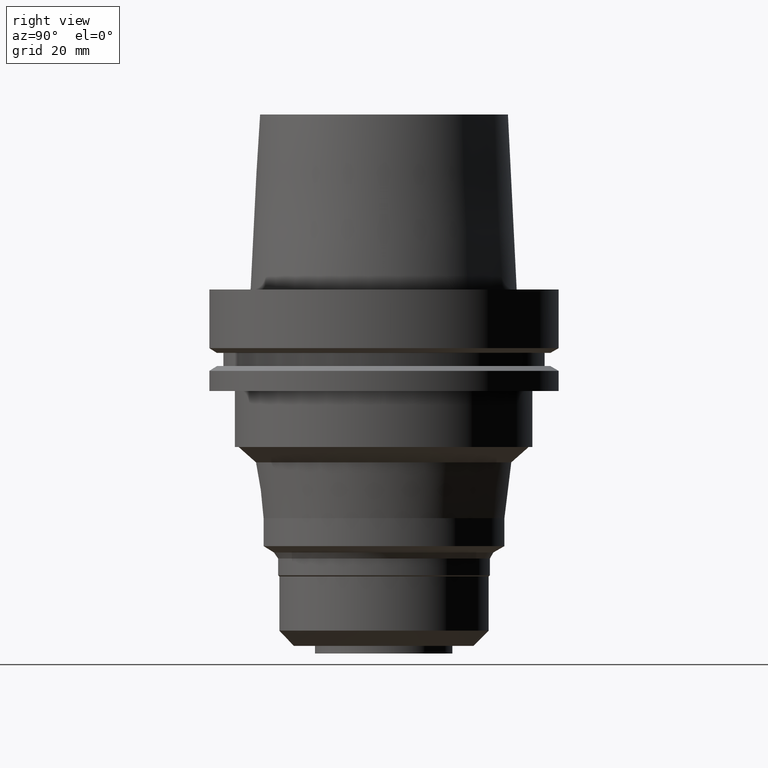
[diagram: clean part render]
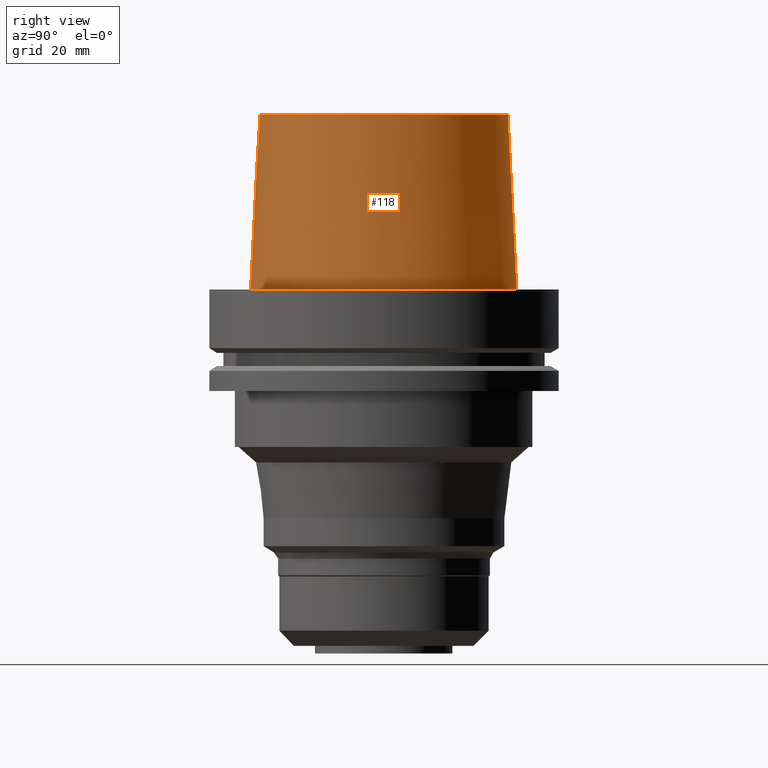
[diagram: same view with one face highlighted and labeled with its STEP entity id]
A machine part, right view. The second image highlights one B-rep face of the part: STEP entity #118.
In plain terms, the highlighted conical surface has half-angle 2.862 deg.
Its self-contained STEP definition (entity closure, byte-faithful):
#118=ADVANCED_FACE('Unnamed[1]',(#284,#285),#286,.T.);
#134=EDGE_CURVE('Unnamed[1]',#311,#311,#312,.T.);
#178=EDGE_CURVE('Unnamed[1]',#380,#380,#381,.T.);
#284=FACE_BOUND('',#506,.T.);
#285=FACE_BOUND('',#507,.T.);
#286=CONICAL_SURFACE('',#508,36.7500000007484,0.0499583956894843);
#311=VERTEX_POINT('',#539);
#312=CIRCLE('',#540,37.9999999999349);
#380=VERTEX_POINT('',#624);
#381=CIRCLE('',#625,35.5000000015618);
#506=EDGE_LOOP('',(#744));
#507=EDGE_LOOP('',(#745));
#508=AXIS2_PLACEMENT_3D('',#746,#747,#748);
#539=CARTESIAN_POINT('',(-3.3636548776863E-032,37.9999999999349,-2.44634216324803E-015));
#540=AXIS2_PLACEMENT_3D('',#776,#777,#778);
#624=CARTESIAN_POINT('',(-3.06161699786838E-015,35.5000000015618,50.0));
#625=AXIS2_PLACEMENT_3D('',#852,#853,#854);
#744=ORIENTED_EDGE('',*,*,#134,.F.);
#745=ORIENTED_EDGE('',*,*,#178,.T.);
#746=CARTESIAN_POINT('',(-1.53080849893419E-015,-3.06161699786838E-015,25.0));
#747=DIRECTION('',(6.12323399573676E-017,1.22464679914735E-016,-1.0));
#748=DIRECTION('',(-1.23259516440783E-032,1.0,1.22464679914735E-016));
#776=CARTESIAN_POINT('',(0.0,0.0,0.0));
#777=DIRECTION('',(6.12323399573677E-017,1.22464679914735E-016,-1.0));
#778=DIRECTION('',(-1.23259516440783E-032,1.0,1.22464679914735E-016));
#852=CARTESIAN_POINT('',(-3.06161699786838E-015,-6.12323399573676E-015,50.0));
#853=DIRECTION('',(6.12323399573677E-017,1.22464679914735E-016,-1.0));
#854=DIRECTION('',(-1.23259516440783E-032,1.0,1.22464679914735E-016));